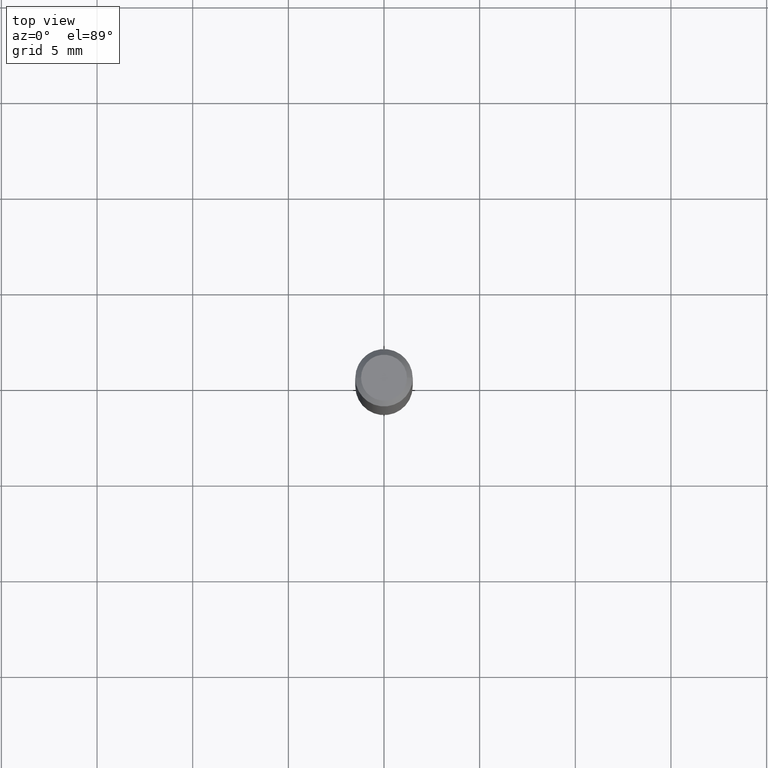
[diagram: clean part render]
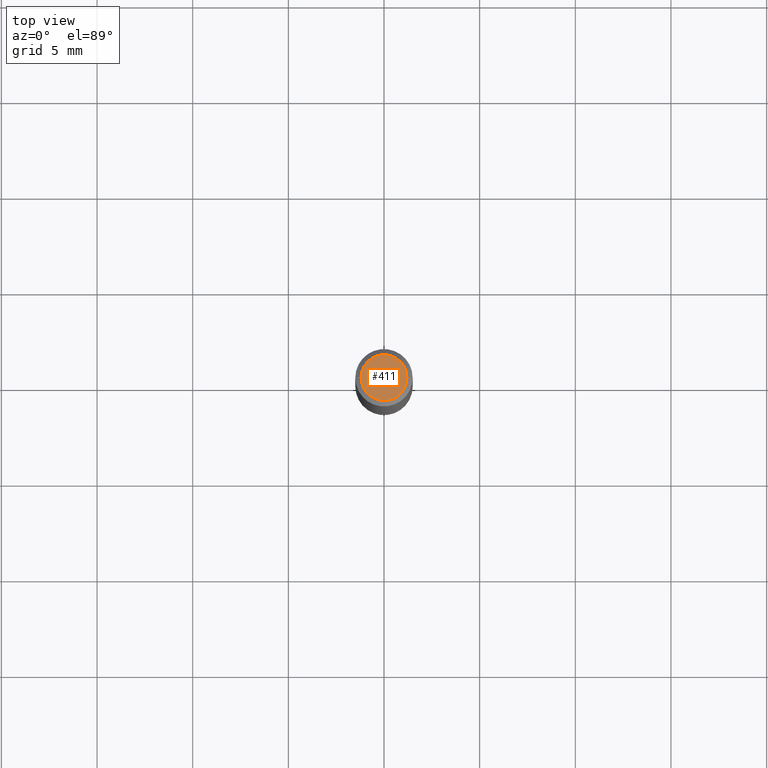
[diagram: same view with one face highlighted and labeled with its STEP entity id]
A machine part, top view. The second image highlights one B-rep face of the part: STEP entity #411.
In plain terms, the highlighted planar face has unit normal (0, -0, -1).
Its self-contained STEP definition (entity closure, byte-faithful):
#16 = EDGE_CURVE ( 'NONE', #428, #150, #487, .T. ) ;
#78 = PLANE ( 'NONE',  #367 ) ;
#150 = VERTEX_POINT ( 'NONE', #209 ) ;
#159 = CIRCLE ( 'NONE', #376, 0.04724000000000000421 ) ;
#209 = CARTESIAN_POINT ( 'NONE',  ( 0.04724000000000000421, -3.852183633974369345E-16, -3.380025165621689721E-19 ) ) ;
#241 = CARTESIAN_POINT ( 'NONE',  ( 8.265746106709734507E-48, -1.180129479067563789E-33, -3.380025165646692144E-19 ) ) ;
#243 = DIRECTION ( 'NONE',  ( 2.438088387897960049E-29, -3.491481338843145188E-15, -1.000000000000000000 ) ) ;
#263 = EDGE_LOOP ( 'NONE', ( #264, #347 ) ) ;
#264 = ORIENTED_EDGE ( 'NONE', *, *, #16, .T. ) ;
#275 = EDGE_CURVE ( 'NONE', #150, #428, #159, .T. ) ;
#279 = DIRECTION ( 'NONE',  ( -2.445468806185136597E-29, 3.491481338843145583E-15, 1.000000000000000000 ) ) ;
#294 = DIRECTION ( 'NONE',  ( 1.000000000000000000, -6.982962677686266711E-15, 4.876185090822587894E-29 ) ) ;
#308 = CARTESIAN_POINT ( 'NONE',  ( 4.132873053354867254E-48, -5.900647395337818946E-34, -1.690012582823346072E-19 ) ) ;
#315 = FACE_OUTER_BOUND ( 'NONE', #263, .T. ) ;
#333 = CARTESIAN_POINT ( 'NONE',  ( 8.265746106709734507E-48, -1.180129479067563789E-33, -3.380025165646692144E-19 ) ) ;
#347 = ORIENTED_EDGE ( 'NONE', *, *, #275, .T. ) ;
#353 = CARTESIAN_POINT ( 'NONE',  ( -0.04724000000000000421, 3.504923541997677355E-16, -3.380025165670481712E-19 ) ) ;
#356 = DIRECTION ( 'NONE',  ( 1.000000000000000000, -6.982962677686266711E-15, 4.876185090822587894E-29 ) ) ;
#367 = AXIS2_PLACEMENT_3D ( 'NONE', #308, #243, #469 ) ;
#375 = AXIS2_PLACEMENT_3D ( 'NONE', #241, #279, #356 ) ;
#376 = AXIS2_PLACEMENT_3D ( 'NONE', #333, #485, #294 ) ;
#411 = ADVANCED_FACE ( 'NONE', ( #315 ), #78, .F. ) ;
#428 = VERTEX_POINT ( 'NONE', #353 ) ;
#469 = DIRECTION ( 'NONE',  ( -1.000000000000000000, 6.982962677686265922E-15, -4.876176775795935793E-29 ) ) ;
#485 = DIRECTION ( 'NONE',  ( -2.445468806185136597E-29, 3.491481338843145583E-15, 1.000000000000000000 ) ) ;
#487 = CIRCLE ( 'NONE', #375, 0.04724000000000000421 ) ;